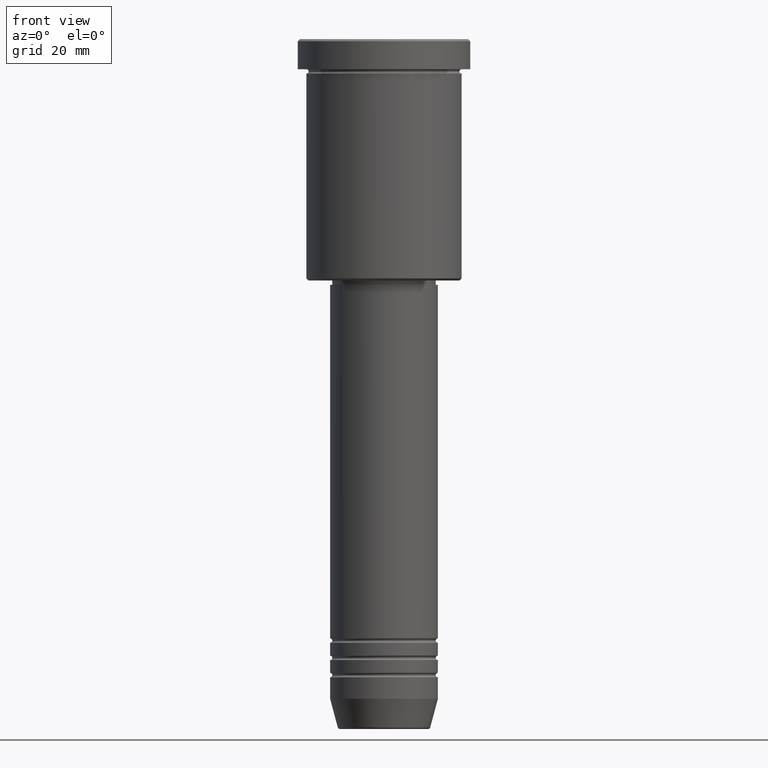
[diagram: clean part render]
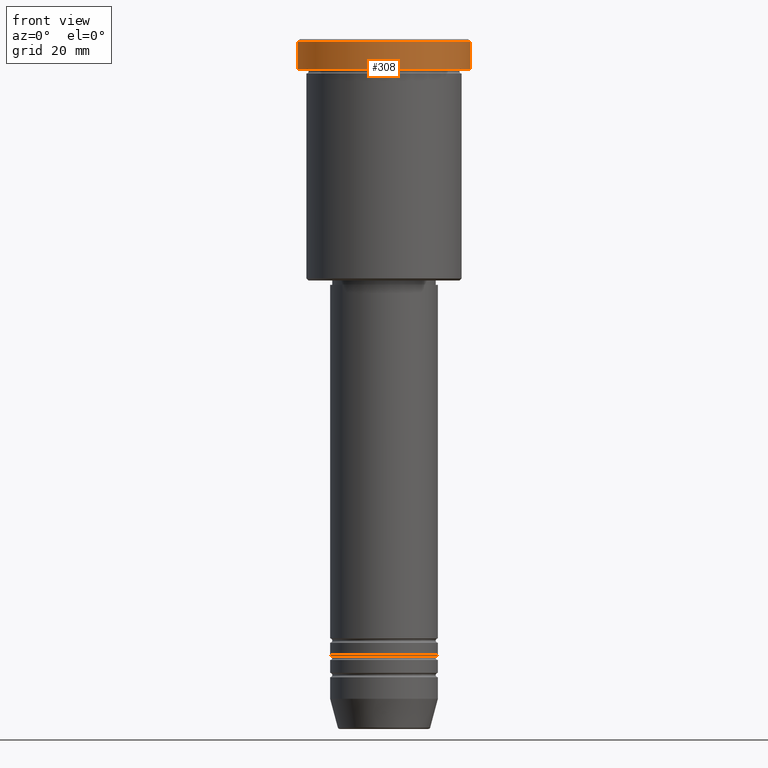
[diagram: same view with one face highlighted and labeled with its STEP entity id]
A machine part, front view. The second image highlights one B-rep face of the part: STEP entity #308.
In plain terms, the highlighted cylindrical surface (partial cylindrical patch) has radius 20 mm, axis along (-0, -0, 1).
Its self-contained STEP definition (entity closure, byte-faithful):
#91 = CIRCLE ( 'NONE', #252, 20.00000000000000000 ) ;
#97 = VERTEX_POINT ( 'NONE', #1086 ) ;
#193 = DIRECTION ( 'NONE',  ( 1.000000000000000000, 0.000000000000000000, 0.000000000000000000 ) ) ;
#200 = DIRECTION ( 'NONE',  ( -0.000000000000000000, -0.000000000000000000, 1.000000000000000000 ) ) ;
#202 = VERTEX_POINT ( 'NONE', #1132 ) ;
#247 = CARTESIAN_POINT ( 'NONE',  ( 20.00000000000000000, 0.000000000000000000, -6.999999999999995559 ) ) ;
#252 = AXIS2_PLACEMENT_3D ( 'NONE', #534, #1006, #1093 ) ;
#254 = DIRECTION ( 'NONE',  ( -0.000000000000000000, -0.000000000000000000, 1.000000000000000000 ) ) ;
#277 = EDGE_CURVE ( 'NONE', #202, #97, #91, .T. ) ;
#294 = CYLINDRICAL_SURFACE ( 'NONE', #876, 20.00000000000000000 ) ;
#303 = FACE_OUTER_BOUND ( 'NONE', #937, .T. ) ;
#308 = ADVANCED_FACE ( 'NONE', ( #303 ), #294, .T. ) ;
#335 = EDGE_CURVE ( 'NONE', #881, #202, #465, .T. ) ;
#370 = ORIENTED_EDGE ( 'NONE', *, *, #759, .F. ) ;
#382 = VECTOR ( 'NONE', #564, 1000.000000000000000 ) ;
#384 = ORIENTED_EDGE ( 'NONE', *, *, #859, .T. ) ;
#422 = CARTESIAN_POINT ( 'NONE',  ( 0.000000000000000000, 0.000000000000000000, -6.999999999999995559 ) ) ;
#433 = LINE ( 'NONE', #1041, #863 ) ;
#465 = LINE ( 'NONE', #846, #382 ) ;
#534 = CARTESIAN_POINT ( 'NONE',  ( 0.000000000000000000, 0.000000000000000000, -0.5000000000000525135 ) ) ;
#564 = DIRECTION ( 'NONE',  ( -0.000000000000000000, -0.000000000000000000, 1.000000000000000000 ) ) ;
#652 = CARTESIAN_POINT ( 'NONE',  ( 0.000000000000000000, 0.000000000000000000, 0.000000000000000000 ) ) ;
#710 = DIRECTION ( 'NONE',  ( 1.000000000000000000, 0.000000000000000000, 0.000000000000000000 ) ) ;
#759 = EDGE_CURVE ( 'NONE', #763, #97, #433, .T. ) ;
#763 = VERTEX_POINT ( 'NONE', #976 ) ;
#780 = DIRECTION ( 'NONE',  ( -0.000000000000000000, -0.000000000000000000, 1.000000000000000000 ) ) ;
#822 = ORIENTED_EDGE ( 'NONE', *, *, #335, .T. ) ;
#846 = CARTESIAN_POINT ( 'NONE',  ( 20.00000000000000000, 0.000000000000000000, 0.000000000000000000 ) ) ;
#859 = EDGE_CURVE ( 'NONE', #763, #881, #987, .T. ) ;
#863 = VECTOR ( 'NONE', #780, 1000.000000000000000 ) ;
#876 = AXIS2_PLACEMENT_3D ( 'NONE', #652, #200, #193 ) ;
#881 = VERTEX_POINT ( 'NONE', #247 ) ;
#937 = EDGE_LOOP ( 'NONE', ( #370, #384, #822, #1094 ) ) ;
#976 = CARTESIAN_POINT ( 'NONE',  ( -20.00000000000000000, 2.449293598294706513E-15, -6.999999999999995559 ) ) ;
#987 = CIRCLE ( 'NONE', #1002, 20.00000000000000000 ) ;
#1002 = AXIS2_PLACEMENT_3D ( 'NONE', #422, #254, #710 ) ;
#1006 = DIRECTION ( 'NONE',  ( 0.000000000000000000, 0.000000000000000000, -1.000000000000000000 ) ) ;
#1041 = CARTESIAN_POINT ( 'NONE',  ( -20.00000000000000000, 2.449293598294706513E-15, 0.000000000000000000 ) ) ;
#1086 = CARTESIAN_POINT ( 'NONE',  ( -20.00000000000000000, 2.449293598294706513E-15, -0.5000000000000525135 ) ) ;
#1093 = DIRECTION ( 'NONE',  ( 1.000000000000000000, 0.000000000000000000, 0.000000000000000000 ) ) ;
#1094 = ORIENTED_EDGE ( 'NONE', *, *, #277, .T. ) ;
#1132 = CARTESIAN_POINT ( 'NONE',  ( 20.00000000000000000, 0.000000000000000000, -0.5000000000000525135 ) ) ;